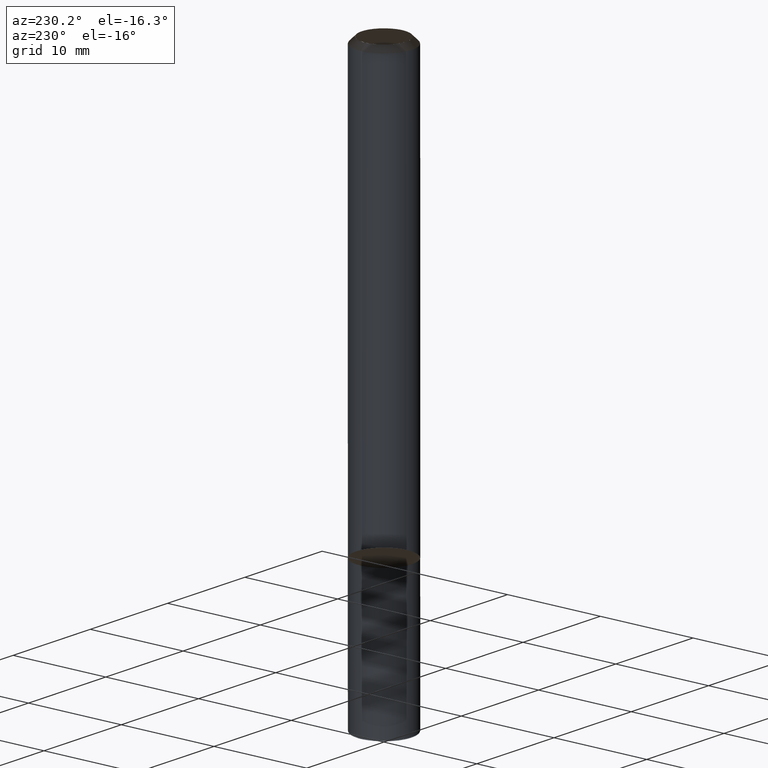
[diagram: clean part render]
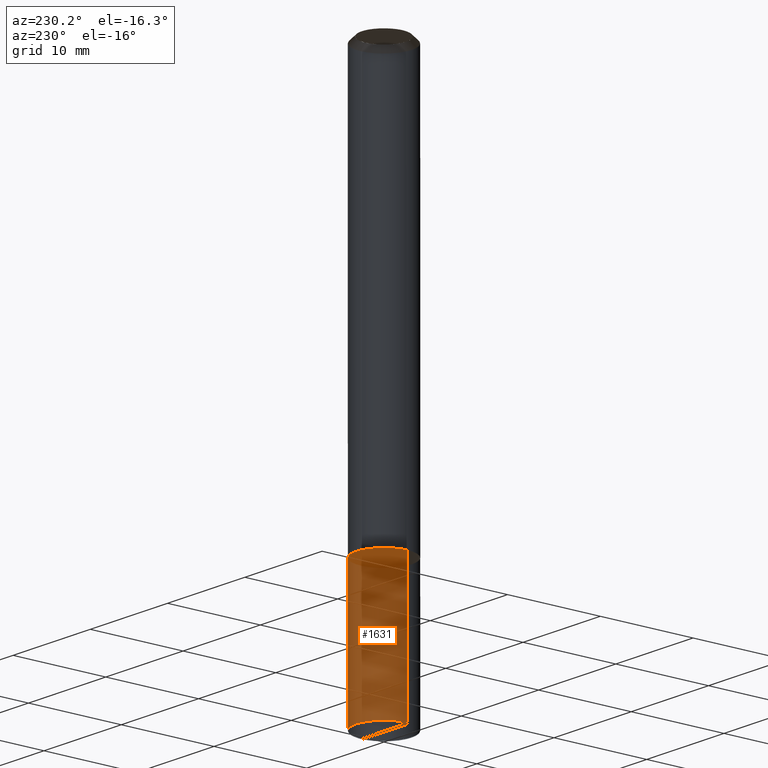
[diagram: same view with one face highlighted and labeled with its STEP entity id]
A machine part, auxiliary view. The second image highlights one B-rep face of the part: STEP entity #1631.
In plain terms, the highlighted face is a freeform B-spline surface patch.
Its self-contained STEP definition (entity closure, byte-faithful):
#1521=CARTESIAN_POINT('',(3.0,0.0,-14.9));
#1522=CARTESIAN_POINT('',(3.0,3.0,-14.9));
#1523=CARTESIAN_POINT('',(0.0,3.0,-14.9));
#1524=CARTESIAN_POINT('',(-3.0,3.0,-14.9));
#1525=CARTESIAN_POINT('',(-3.0,0.0,-14.9));
#1526=CARTESIAN_POINT('',(3.0,0.0,0.0));
#1527=CARTESIAN_POINT('',(3.0,3.0,0.0));
#1528=CARTESIAN_POINT('',(0.0,3.0,0.0));
#1529=CARTESIAN_POINT('',(-3.0,3.0,0.0));
#1530=CARTESIAN_POINT('',(-3.0,0.0,0.0));
#1612=(
BOUNDED_SURFACE()
B_SPLINE_SURFACE(1,2,(
(#1521,#1522,#1523,#1524,#1525),
(#1526,#1527,#1528,#1529,#1530)
), .UNSPECIFIED.,.F.,.F.,.F.)
B_SPLINE_SURFACE_WITH_KNOTS((2,2),(3,2,3),(
0.0,1.0),(
0.0,0.5,1.0), .UNSPECIFIED.)
GEOMETRIC_REPRESENTATION_ITEM()
RATIONAL_B_SPLINE_SURFACE(((1.0,0.707106781187,1.0,0.707106781187,1.0),
(1.0,0.707106781187,1.0,0.707106781187,1.0)
))
REPRESENTATION_ITEM('')
SURFACE()
);
#1613=(
BOUNDED_CURVE()
B_SPLINE_CURVE(2,(#1526,#1527,#1528,#1529,#1530),.UNSPECIFIED.,.F.,.F.)
B_SPLINE_CURVE_WITH_KNOTS((3,2,3),
(0.0,0.5,1.0),.UNSPECIFIED.)
CURVE()
GEOMETRIC_REPRESENTATION_ITEM()
RATIONAL_B_SPLINE_CURVE((1.0,0.707106781187,1.0,0.707106781187,1.0))
REPRESENTATION_ITEM('')
);
#1614=(
BOUNDED_CURVE()
B_SPLINE_CURVE(1,(#1530,#1525),.UNSPECIFIED.,.F.,.F.)
B_SPLINE_CURVE_WITH_KNOTS((2,2),
(0.0,1.0),.UNSPECIFIED.)
CURVE()
GEOMETRIC_REPRESENTATION_ITEM()
RATIONAL_B_SPLINE_CURVE((1.0,1.0))
REPRESENTATION_ITEM('')
);
#1615=(
BOUNDED_CURVE()
B_SPLINE_CURVE(2,(#1525,#1524,#1523,#1522,#1521),.UNSPECIFIED.,.F.,.F.)
B_SPLINE_CURVE_WITH_KNOTS((3,2,3),
(0.0,0.5,1.0),.UNSPECIFIED.)
CURVE()
GEOMETRIC_REPRESENTATION_ITEM()
RATIONAL_B_SPLINE_CURVE((1.0,0.707106781187,1.0,0.707106781187,1.0))
REPRESENTATION_ITEM('')
);
#1616=(
BOUNDED_CURVE()
B_SPLINE_CURVE(1,(#1521,#1526),.UNSPECIFIED.,.F.,.F.)
B_SPLINE_CURVE_WITH_KNOTS((2,2),
(0.0,1.0),.UNSPECIFIED.)
CURVE()
GEOMETRIC_REPRESENTATION_ITEM()
RATIONAL_B_SPLINE_CURVE((1.0,1.0))
REPRESENTATION_ITEM('')
);
#1617=VERTEX_POINT('',#1521);
#1618=VERTEX_POINT('',#1525);
#1619=VERTEX_POINT('',#1526);
#1620=VERTEX_POINT('',#1530);
#1621=EDGE_CURVE('',#1619,#1620,#1613,.T.);
#1622=EDGE_CURVE('',#1620,#1618,#1614,.T.);
#1623=EDGE_CURVE('',#1618,#1617,#1615,.T.);
#1624=EDGE_CURVE('',#1617,#1619,#1616,.T.);
#1625=ORIENTED_EDGE('',*,*,#1621,.T.);
#1626=ORIENTED_EDGE('',*,*,#1622,.T.);
#1627=ORIENTED_EDGE('',*,*,#1623,.T.);
#1628=ORIENTED_EDGE('',*,*,#1624,.T.);
#1629=EDGE_LOOP('',(#1625,#1626,#1627,#1628));
#1630=FACE_OUTER_BOUND('',#1629,.T.);
#1631=ADVANCED_FACE('',(#1630),#1612,.T.);